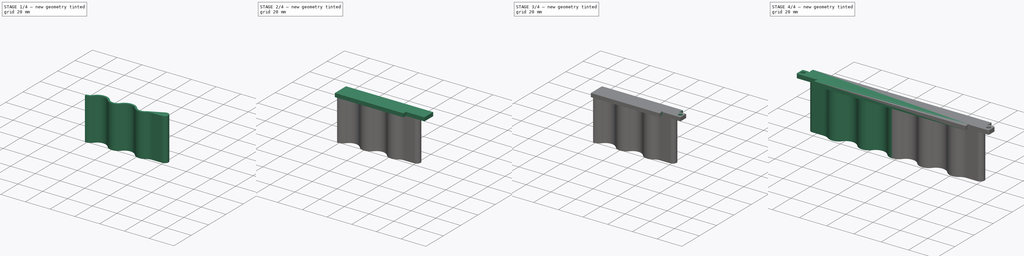
[diagram: build sequence overview — one tinted view per stage of 4, left to right]
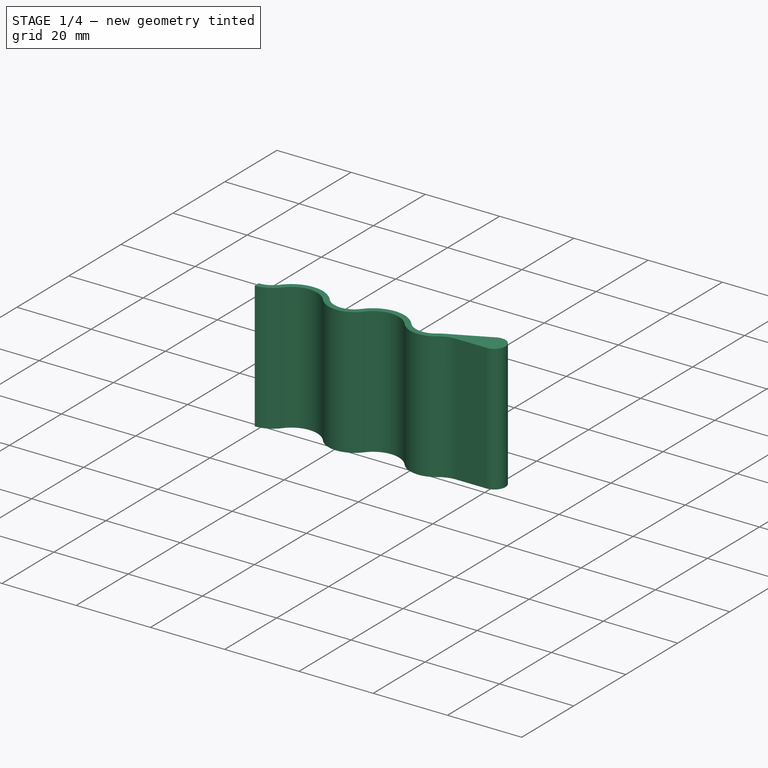
[diagram: stage 1 of 4 — iso view after this stage's code; geometry added in this stage tinted green]
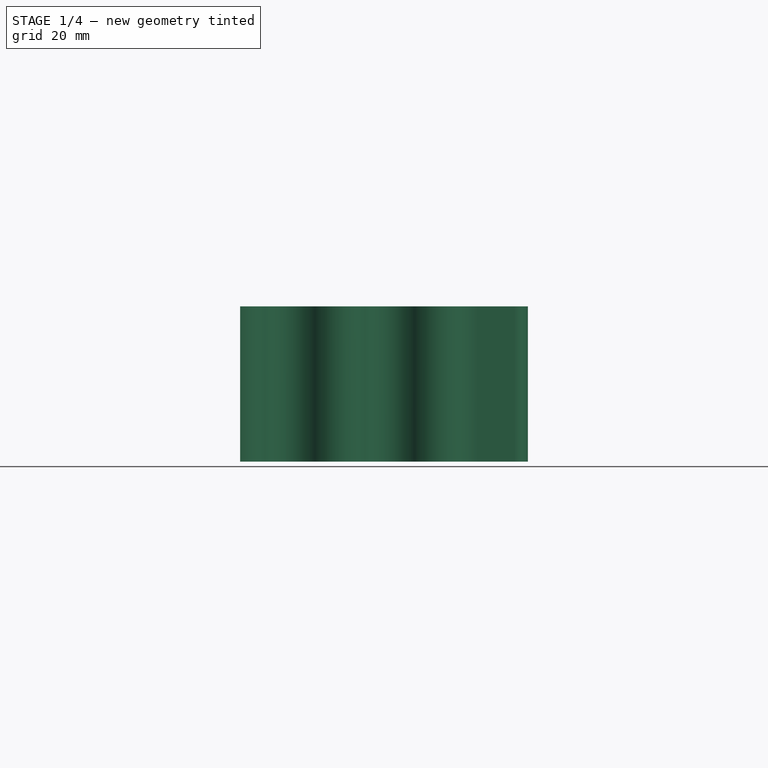
[diagram: stage 1 of 4 — front view after this stage's code; geometry added in this stage tinted green]
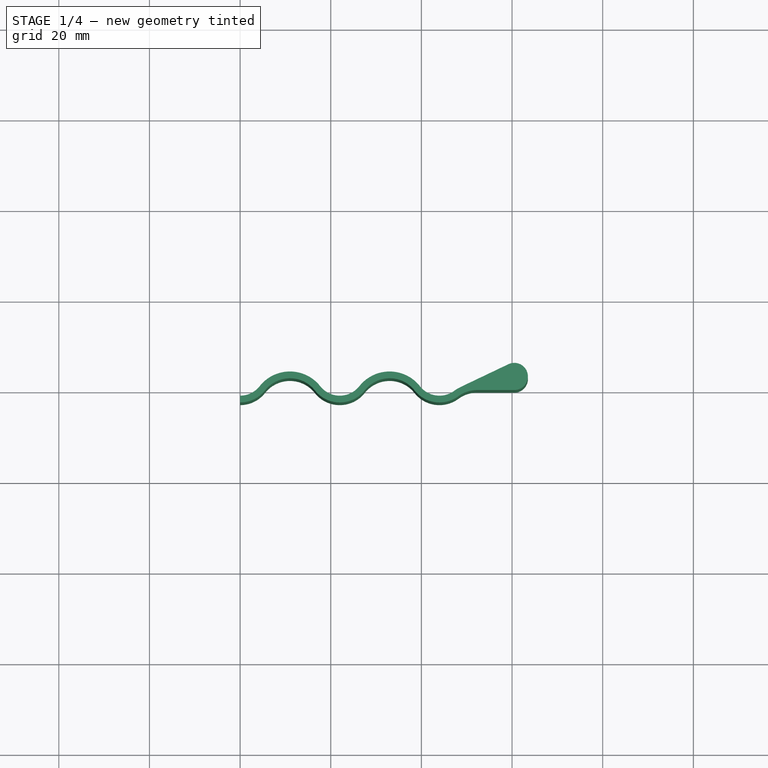
[diagram: stage 1 of 4 — top view after this stage's code; geometry added in this stage tinted green]
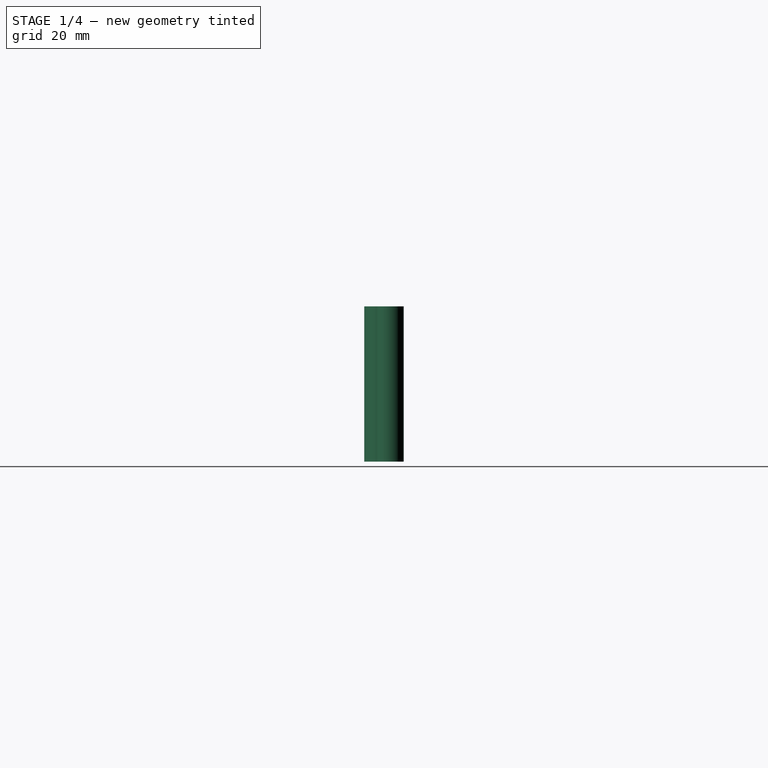
[diagram: stage 1 of 4 — right view after this stage's code; geometry added in this stage tinted green]
FCSTD DOCUMENT  (FreeCAD 1.0R39319 (Git))
Label: Ambient_LED_Screen
License: All rights reserved
LicenseURL: https://en.wikipedia.org/wiki/All_rights_reserved
objects: Sketcher::SketchObject×7, PartDesign::Pocket×5, PartDesign::Pad×2, PartDesign::Chamfer×1, PartDesign::Mirrored×1, PartDesign::Body×1, PartDesign::CoordinateSystem×1, App::Part×1
note: 42 computed .brp shape members not serialized (recipe doc carries the construction recipe); baked Part::Feature solids carry a one-line shape summary decoded from their .brp

FEATURE [Sketcher::SketchObject] Sketch
  ArcFitTolerance = 1e-06
  AttachmentSupport = -> [XY_Plane001]
  FullyConstrained = true
  MakeInternals = false
  MapMode = 5
  sketch-geometry (20):
    g0: LineSegment StartX=52.3059 StartY=0 StartZ=0 EndX=60.5 EndY=0 EndZ=0
    g1: ArcOfCircle CenterX=60.5 CenterY=3 CenterZ=0 NormalX=0 NormalY=0 NormalZ=1 AngleXU=0 Radius=3 StartAngle=4.71239 EndAngle=8.29889
    g2: LineSegment StartX=59.2089 StartY=5.70795 StartZ=0 EndX=48.6478 EndY=0.672534 EndZ=0
    g3: ArcOfCircle CenterX=0 CenterY=4.259 CenterZ=0 NormalX=0 NormalY=0 NormalZ=1 AngleXU=0 Radius=7 StartAngle=4.71239 EndAngle=5.61581
    g4: ArcOfCircle CenterX=0 CenterY=4.259 CenterZ=0 NormalX=0 NormalY=0 NormalZ=1 AngleXU=0 Radius=5.5 StartAngle=4.71239 EndAngle=5.61581
    g5: LineSegment StartX=-1.3e-15 StartY=-2.741 StartZ=0 EndX=-1.3e-15 EndY=-1.241 EndZ=0
    g6: ArcOfCircle CenterX=10.9963 CenterY=-4.40596 CenterZ=0 NormalX=0 NormalY=0 NormalZ=1 AngleXU=0 Radius=7 StartAngle=0.667374 EndAngle=2.47422
    g7: ArcOfCircle CenterX=10.9963 CenterY=-4.40596 CenterZ=0 NormalX=0 NormalY=0 NormalZ=1 AngleXU=0 Radius=8.5 StartAngle=0.667374 EndAngle=2.47422
    g8: ArcOfCircle CenterX=21.9926 CenterY=4.259 CenterZ=0 NormalX=0 NormalY=0 NormalZ=1 AngleXU=0 Radius=5.5 StartAngle=3.80897 EndAngle=5.61581
    g9: ArcOfCircle CenterX=21.9926 CenterY=4.259 CenterZ=0 NormalX=0 NormalY=0 NormalZ=1 AngleXU=0 Radius=7 StartAngle=3.80897 EndAngle=5.61581
    g10: ArcOfCircle CenterX=32.9889 CenterY=-4.40596 CenterZ=0 NormalX=0 NormalY=0 NormalZ=1 AngleXU=0 Radius=8.5 StartAngle=0.667374 EndAngle=2.47422
    g11: ArcOfCircle CenterX=32.9889 CenterY=-4.40596 CenterZ=0 NormalX=0 NormalY=0 NormalZ=1 AngleXU=0 Radius=7 StartAngle=0.667374 EndAngle=2.47422
    g12: ArcOfCircle CenterX=43.9852 CenterY=4.259 CenterZ=0 NormalX=0 NormalY=0 NormalZ=1 AngleXU=0 Radius=7 StartAngle=3.80897 EndAngle=5.34883
    g13: ArcOfCircle CenterX=43.9852 CenterY=4.259 CenterZ=0 NormalX=0 NormalY=0 NormalZ=1 AngleXU=0 Radius=5.5 StartAngle=3.80897 EndAngle=5.34883
    g14: ArcOfCircle CenterX=52.3059 CenterY=-7 CenterZ=0 NormalX=0 NormalY=0 NormalZ=1 AngleXU=0 Radius=8.5 StartAngle=2.0157 EndAngle=2.20724
    g15: ArcOfCircle CenterX=52.3059 CenterY=-7 CenterZ=0 NormalX=0 NormalY=0 NormalZ=1 AngleXU=0 Radius=7 StartAngle=1.5708 EndAngle=2.20724
    g16: GeomPoint [constr] X=66 Y=10 Z=0
    g17: LineSegment [constr] StartX=48.1455 StartY=-1.3705 StartZ=0 EndX=50 EndY=2e-16 EndZ=0
    g18: LineSegment [constr] StartX=10.9963 StartY=-4.40596 StartZ=0 EndX=32.9889 EndY=-4.40596 EndZ=0
    g19: LineSegment [constr] StartX=0 StartY=4.259 StartZ=0 EndX=43.9852 EndY=4.259 EndZ=0
  constraints (49):
    c: PointOnObject(g0,g-1)
    c: PointOnObject(g0,g-1)
    c: Tangent(g0,g1) = -1.5708
    c: Tangent(g1,g2) = -1.5708
    c: Coincident(g5,g3)
    c: Coincident(g5,g4)
    c: Vertical(g5)
    c: Coincident(g4,g3)
    c: PointOnObject(g3,g-2)
    c: Tangent(g6,g3) = 1.5708
    c: Tangent(g7,g4) = 1.5708
    c: Coincident(g6,g7)
    c: Radius(g6) = 7
    c: Distance(g5,g5) = 1.5
    c: Tangent(g8,g7) = 1.5708
    c: Tangent(g9,g6) = 1.5708
    c: Coincident(g9,g8)
    c: PointOnObject(g3,g-2)
    c: Tangent(g10,g8) = 1.5708
    c: Tangent(g11,g9) = 1.5708
    c: Coincident(g11,g10)
    c: Tangent(g12,g11) = 1.5708
    c: Tangent(g13,g10) = 1.5708
    c: Coincident(g12,g13)
    c: Tangent(g14,g13) = 1.5708
    c: Tangent(g14,g2) = -1.5708
    c: Tangent(g15,g0) = 1.5708
    c: Radius(g9) = 7
    c: Radius(g12) = 7
    c: Coincident(g15,g14)
    c: DistanceX(g-1,g16) = 66
    c: Distance(g16,g-1) = 10
    c: Radius(g1) = 3
    c: Distance(g1,g-2) = 60.5
    c: Tangent(g15,g12) = 1.5708
    c: Tangent(g12,g17) = -1.5708
    c: Radius(g3) = 7
    c: Radius(g11) = 7
    c: Radius(g15) = 7
    c: PointOnObject(g17,g-1)
    c: DistanceX(g-1,g17) = 50
    c: Coincident(g18,g6)
    c: Coincident(g18,g10)
    c: Coincident(g19,g3)
    c: Coincident(g19,g12)
    c: Horizontal(g19)
    c: PointOnObject(g8,g19)
    c: Horizontal(g18)
    c: Distance(g-1,g19) = 4.259
FEATURE [PartDesign::Pad] Pad
  Direction = (0,0,1)
  Length = 34.25
  Length2 = 10
  Profile = -> Sketch
  ReferenceAxis = -> Sketch [N_Axis]
  Refine = true
  Suppressed = false
  Type = 0
FEATURE [Sketcher::SketchObject] Sketch001
  ArcFitTolerance = 1e-06
  AttachmentSupport = -> [Pad]
  ExternalGeometry = -> [Pad]
  FullyConstrained = true
  MakeInternals = false
  MapMode = 5
  Placement = pos=(0,0,0) rot=(1,0,0;3.14159rad)
  sketch-geometry (1):
    g0: Circle CenterX=60.5 CenterY=-3 CenterZ=0 NormalX=0 NormalY=0 NormalZ=1 AngleXU=0 Radius=1.25
  constraints (2):
    c: Coincident(g0,g-3)
    c: Diameter(g0) = 2.5
FEATURE [PartDesign::Pocket] Pocket
  BaseFeature = -> Pad
  Direction = (0,0,1)
  Length = 10
  Length2 = 5
  Profile = -> Sketch001
  ReferenceAxis = -> Sketch001 [N_Axis]
  Refine = true
  Suppressed = false
  Type = 0
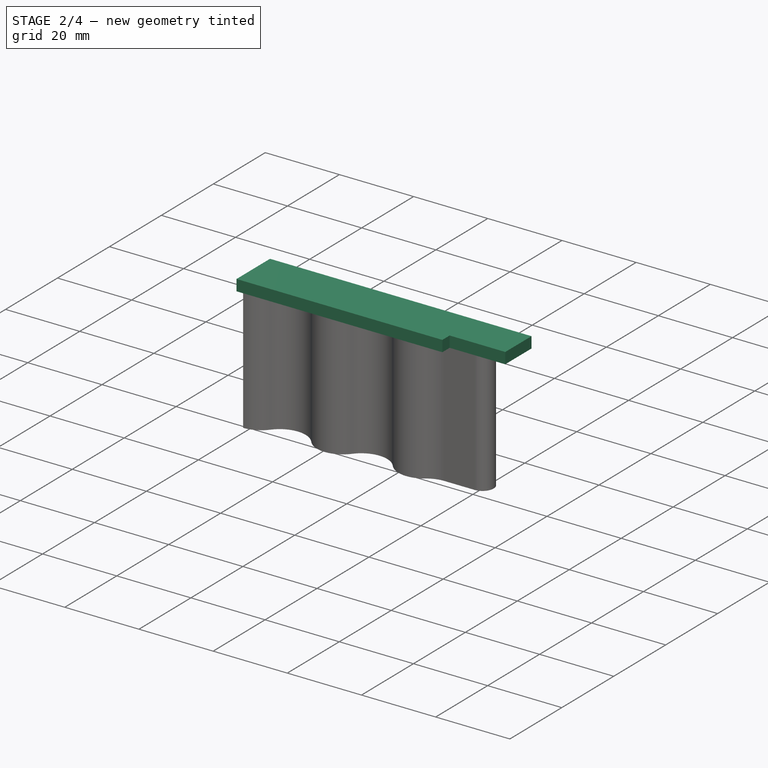
[diagram: stage 2 of 4 — iso view after this stage's code; geometry added in this stage tinted green]
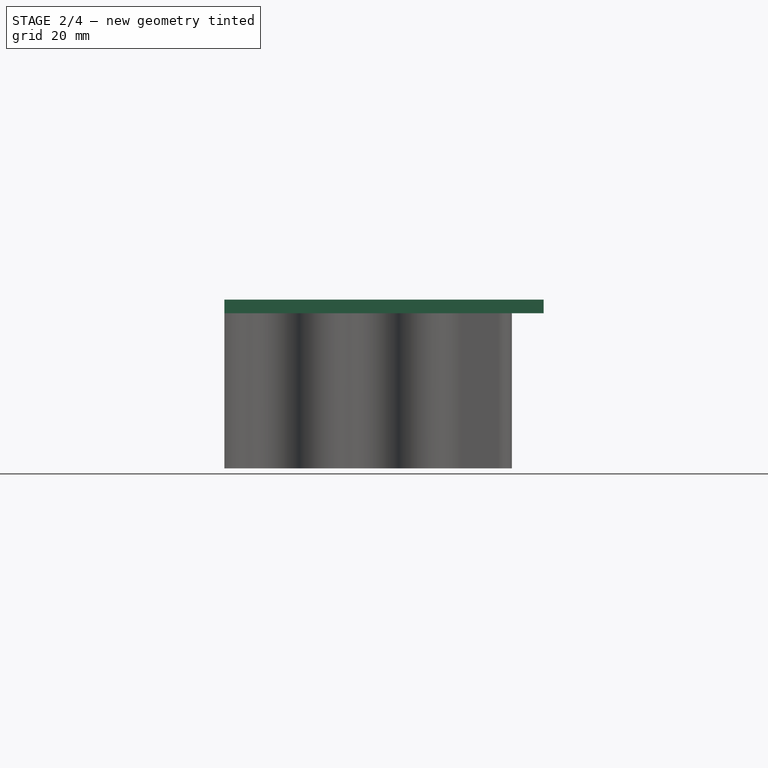
[diagram: stage 2 of 4 — front view after this stage's code; geometry added in this stage tinted green]
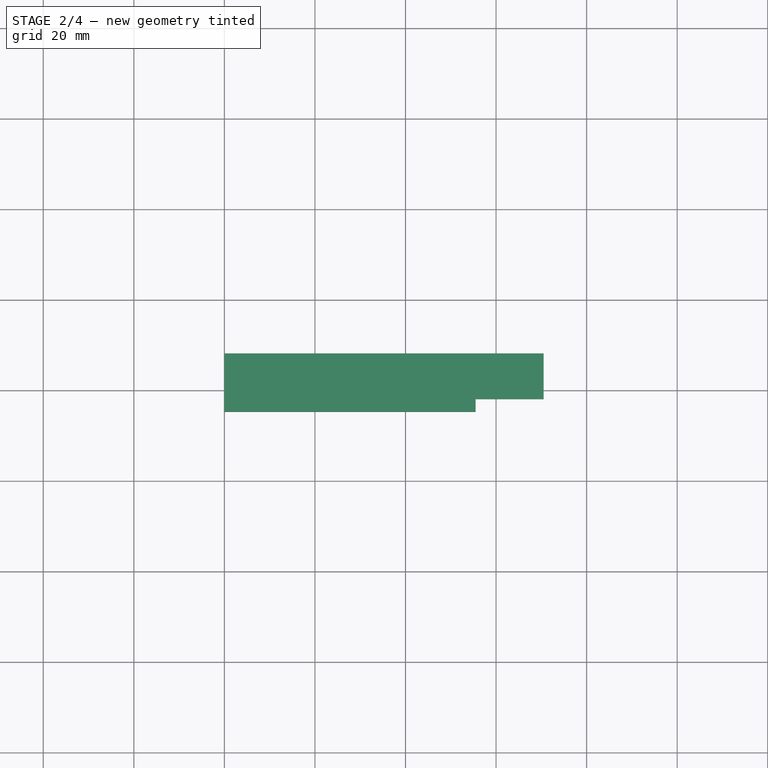
[diagram: stage 2 of 4 — top view after this stage's code; geometry added in this stage tinted green]
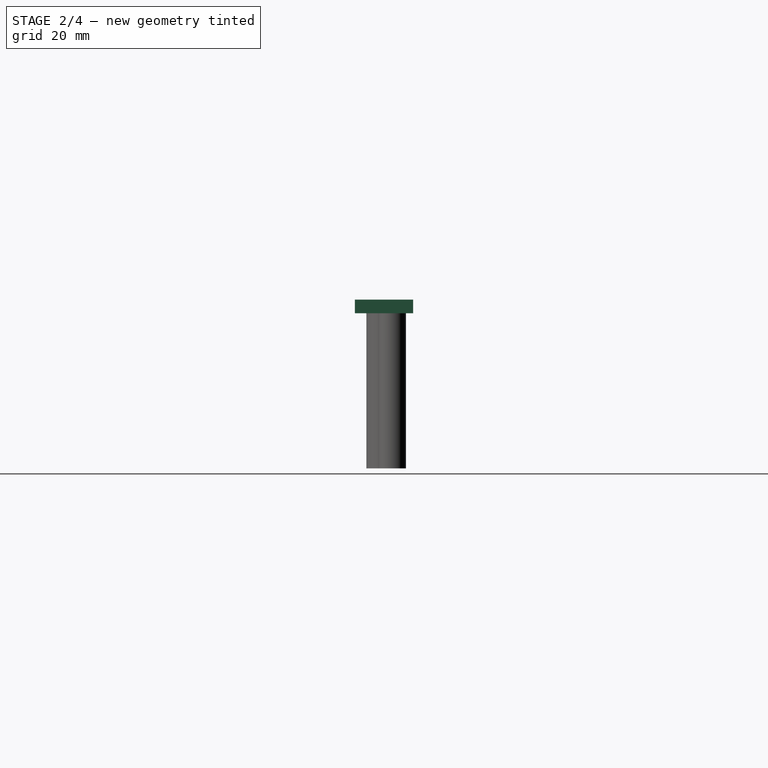
[diagram: stage 2 of 4 — right view after this stage's code; geometry added in this stage tinted green]
FEATURE [Sketcher::SketchObject] Sketch002
  ArcFitTolerance = 1e-06
  AttachmentSupport = -> [Pocket]
  FullyConstrained = true
  MakeInternals = false
  MapMode = 5
  Placement = pos=(0,0,34.25) rot=(0,0,1;0rad)
  sketch-geometry (4):
    g0: LineSegment StartX=0 StartY=7.59 StartZ=0 EndX=0 EndY=-5.3 EndZ=0
    g1: LineSegment StartX=0 StartY=-5.3 StartZ=0 EndX=70.5 EndY=-5.3 EndZ=0
    g2: LineSegment StartX=70.5 StartY=-5.3 StartZ=0 EndX=70.5 EndY=7.59 EndZ=0
    g3: LineSegment StartX=70.5 StartY=7.59 StartZ=0 EndX=0 EndY=7.59 EndZ=0
  constraints (12):
    c: Coincident(g0,g1)
    c: Coincident(g1,g2)
    c: Coincident(g2,g3)
    c: Coincident(g3,g0)
    c: Vertical(g0)
    c: Vertical(g2)
    c: Horizontal(g1)
    c: Horizontal(g3)
    c: PointOnObject(g0,g-2)
    c: Distance(g2,g0) = 70.5
    c: Distance(g3,g1) = 12.89
    c: Distance(g1,g-1) = 5.3
FEATURE [PartDesign::Pad] Pad001
  BaseFeature = -> Pocket
  Direction = (0,0,1)
  Length = 3
  Length2 = 10
  Profile = -> Sketch002
  ReferenceAxis = -> Sketch002 [N_Axis]
  Refine = true
  Suppressed = false
  Type = 0
FEATURE [Sketcher::SketchObject] Sketch003
  ArcFitTolerance = 1e-06
  AttachmentSupport = -> [Pad001]
  ExternalGeometry = -> [Pad001]
  FullyConstrained = true
  MakeInternals = false
  MapMode = 5
  Placement = pos=(0,0,37.25) rot=(0,0,1;0rad)
  sketch-geometry (4):
    g0: LineSegment StartX=70.5 StartY=-2.5 StartZ=0 EndX=55.5 EndY=-2.5 EndZ=0
    g1: LineSegment StartX=55.5 StartY=-2.5 StartZ=0 EndX=55.5 EndY=-5.3 EndZ=0
    g2: LineSegment StartX=55.5 StartY=-5.3 StartZ=0 EndX=70.5 EndY=-5.3 EndZ=0
    g3: LineSegment StartX=70.5 StartY=-5.3 StartZ=0 EndX=70.5 EndY=-2.5 EndZ=0
  constraints (12):
    c: Coincident(g0,g1)
    c: Coincident(g1,g2)
    c: Coincident(g2,g3)
    c: Coincident(g3,g0)
    c: Horizontal(g0)
    c: Horizontal(g2)
    c: Vertical(g1)
    c: Vertical(g3)
    c: PointOnObject(g0,g-3)
    c: PointOnObject(g1,g-4)
    c: Distance(g3,g1) = 15
    c: Distance(g2,g0) = 2.8
FEATURE [PartDesign::Pocket] Pocket001
  BaseFeature = -> Pad001
  Direction = (0,0,-1)
  Length = 5
  Length2 = 5
  Profile = -> Sketch003
  ReferenceAxis = -> Sketch003 [N_Axis]
  Refine = true
  Suppressed = false
  Type = 1
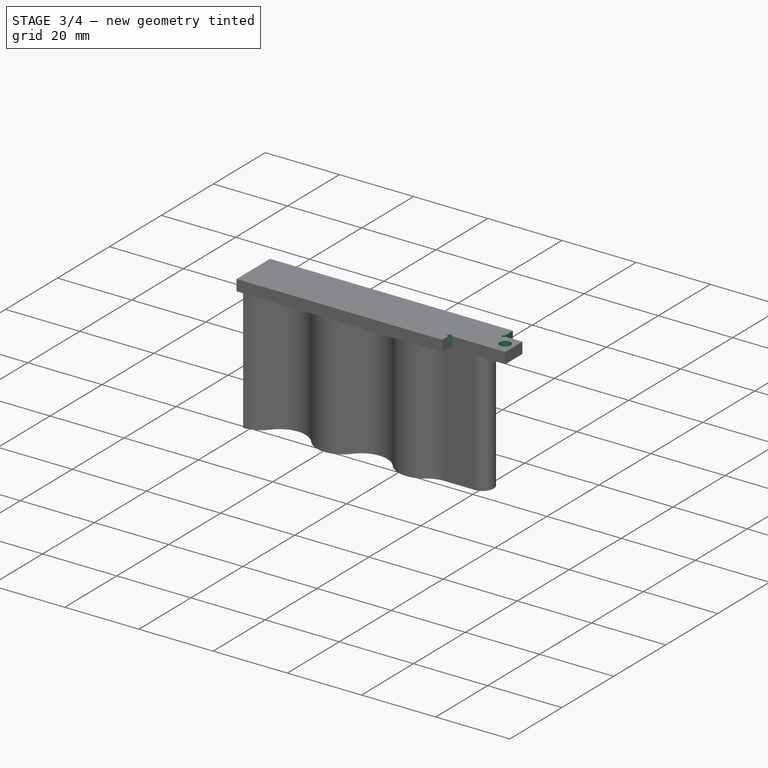
[diagram: stage 3 of 4 — iso view after this stage's code; geometry added in this stage tinted green]
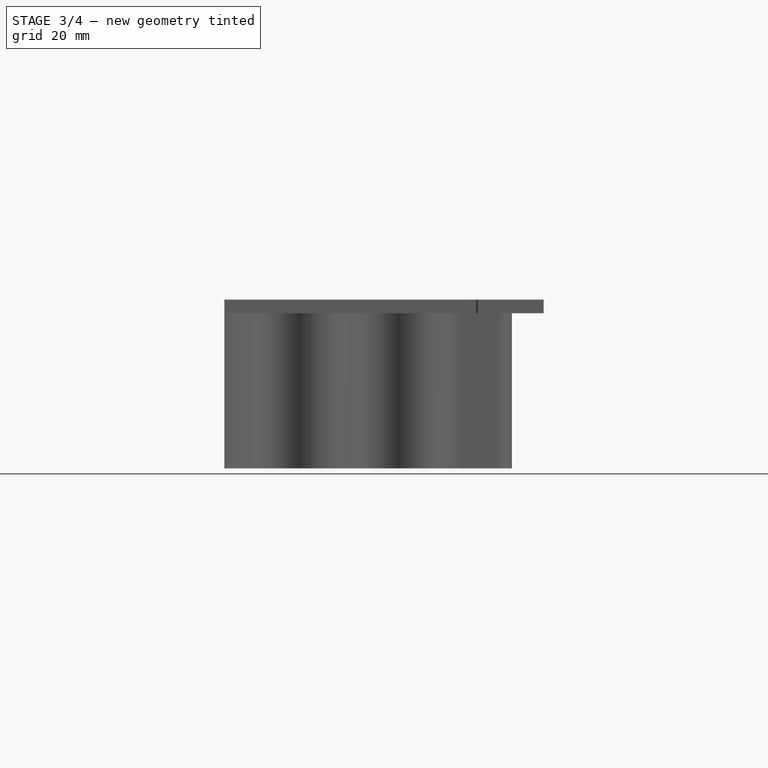
[diagram: stage 3 of 4 — front view after this stage's code; geometry added in this stage tinted green]
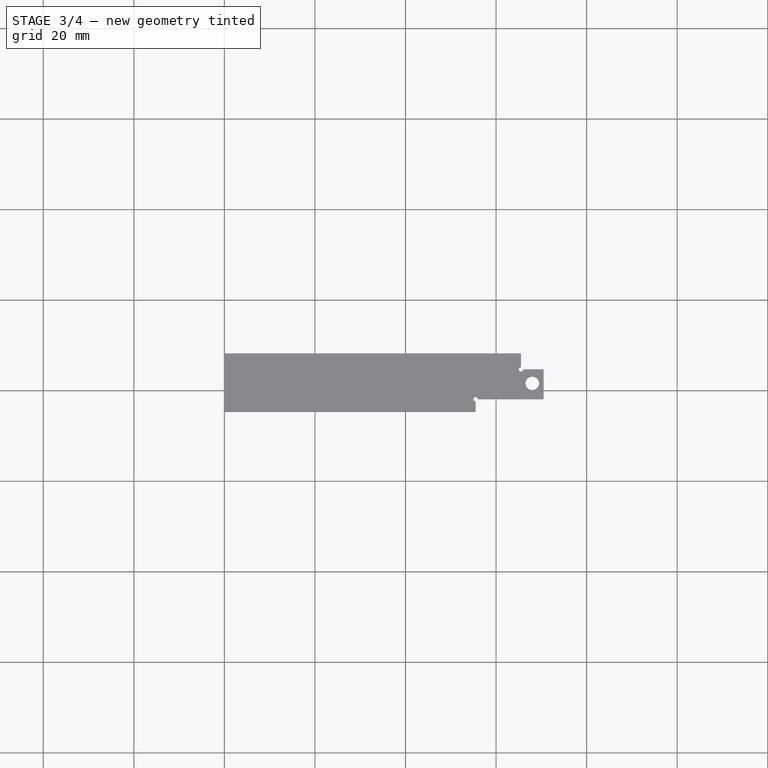
[diagram: stage 3 of 4 — top view after this stage's code; geometry added in this stage tinted green]
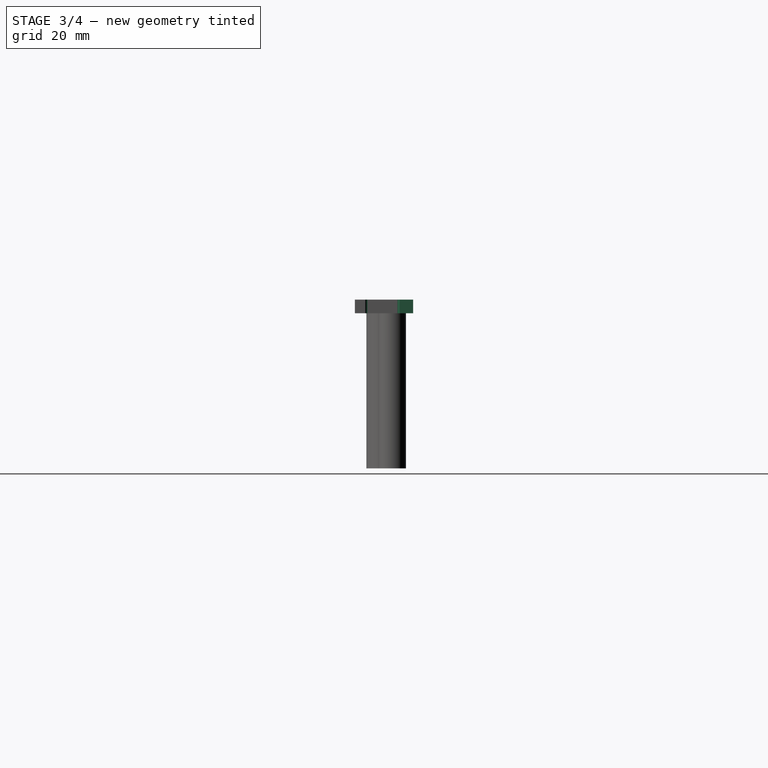
[diagram: stage 3 of 4 — right view after this stage's code; geometry added in this stage tinted green]
FEATURE [Sketcher::SketchObject] Sketch004
  ArcFitTolerance = 1e-06
  AttachmentSupport = -> [Pocket001]
  ExternalGeometry = -> [Pocket001]
  FullyConstrained = true
  MakeInternals = false
  MapMode = 5
  Placement = pos=(0,0,37.25) rot=(0,0,1;0rad)
  sketch-geometry (4):
    g0: LineSegment StartX=65.5 StartY=7.59 StartZ=0 EndX=65.5 EndY=4.09 EndZ=0
    g1: LineSegment StartX=65.5 StartY=4.09 StartZ=0 EndX=70.5 EndY=4.09 EndZ=0
    g2: LineSegment StartX=70.5 StartY=4.09 StartZ=0 EndX=70.5 EndY=7.59 EndZ=0
    g3: LineSegment StartX=70.5 StartY=7.59 StartZ=0 EndX=65.5 EndY=7.59 EndZ=0
  constraints (12):
    c: Coincident(g0,g1)
    c: Coincident(g1,g2)
    c: Coincident(g2,g3)
    c: Coincident(g3,g0)
    c: Vertical(g0)
    c: Vertical(g2)
    c: Horizontal(g1)
    c: Horizontal(g3)
    c: PointOnObject(g0,g-4)
    c: Distance(g2,g0) = 5
    c: Distance(g1,g3) = 3.5
    c: PointOnObject(g1,g-3)
FEATURE [PartDesign::Pocket] Pocket002
  BaseFeature = -> Pocket001
  Direction = (0,0,-1)
  Length = 5
  Length2 = 5
  Profile = -> Sketch004
  ReferenceAxis = -> Sketch004 [N_Axis]
  Refine = true
  Suppressed = false
  Type = 1
FEATURE [Sketcher::SketchObject] Sketch005
  ArcFitTolerance = 1e-06
  AttachmentSupport = -> [Pocket002]
  ExternalGeometry = -> [Pocket002]
  FullyConstrained = true
  MakeInternals = false
  MapMode = 5
  Placement = pos=(0,0,37.25) rot=(0,0,1;0rad)
  sketch-geometry (1):
    g0: Circle CenterX=68 CenterY=1 CenterZ=0 NormalX=0 NormalY=0 NormalZ=1 AngleXU=0 Radius=1.5
  constraints (3):
    c: Distance(g0,g-2) = 68
    c: Distance(g0,g-3) = 3.5
    c: Diameter(g0) = 3
FEATURE [PartDesign::Pocket] Pocket003
  BaseFeature = -> Pocket002
  Direction = (0,0,-1)
  Length = 5
  Length2 = 5
  Profile = -> Sketch005
  ReferenceAxis = -> Sketch005 [N_Axis]
  Refine = true
  Suppressed = false
  Type = 1
FEATURE [Sketcher::SketchObject] Sketch006
  ArcFitTolerance = 1e-06
  AttachmentSupport = -> [Pocket003]
  ExternalGeometry = -> [Pocket003]
  FullyConstrained = true
  MakeInternals = false
  MapMode = 5
  Placement = pos=(0,0,37.25) rot=(0,0,1;0rad)
  sketch-geometry (2):
    g0: Circle CenterX=65.5 CenterY=4.09 CenterZ=0 NormalX=0 NormalY=0 NormalZ=1 AngleXU=0 Radius=0.5
    g1: Circle CenterX=55.5 CenterY=-2.5 CenterZ=0 NormalX=0 NormalY=0 NormalZ=1 AngleXU=0 Radius=0.5
  constraints (4):
    c: Coincident(g0,g-3)
    c: Coincident(g1,g-4)
    c: Diameter(g0) = 1
    c: Diameter(g1) = 1
FEATURE [PartDesign::Pocket] Pocket004
  BaseFeature = -> Pocket003
  Direction = (0,0,-1)
  Length = 5
  Length2 = 5
  Profile = -> Sketch006
  ReferenceAxis = -> Sketch006 [N_Axis]
  Refine = true
  Suppressed = false
  Type = 1
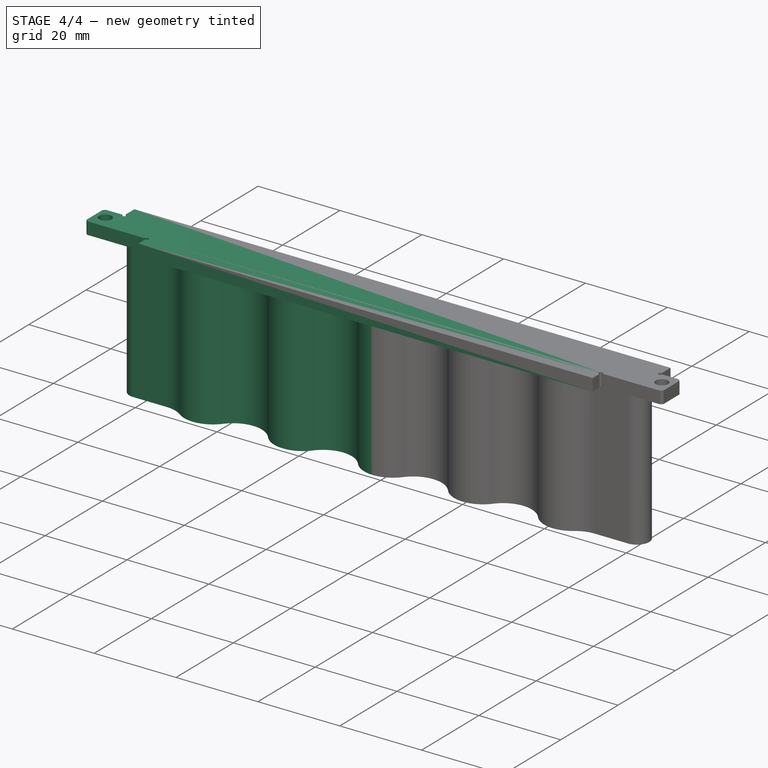
[diagram: stage 4 of 4 — iso view after this stage's code; geometry added in this stage tinted green]
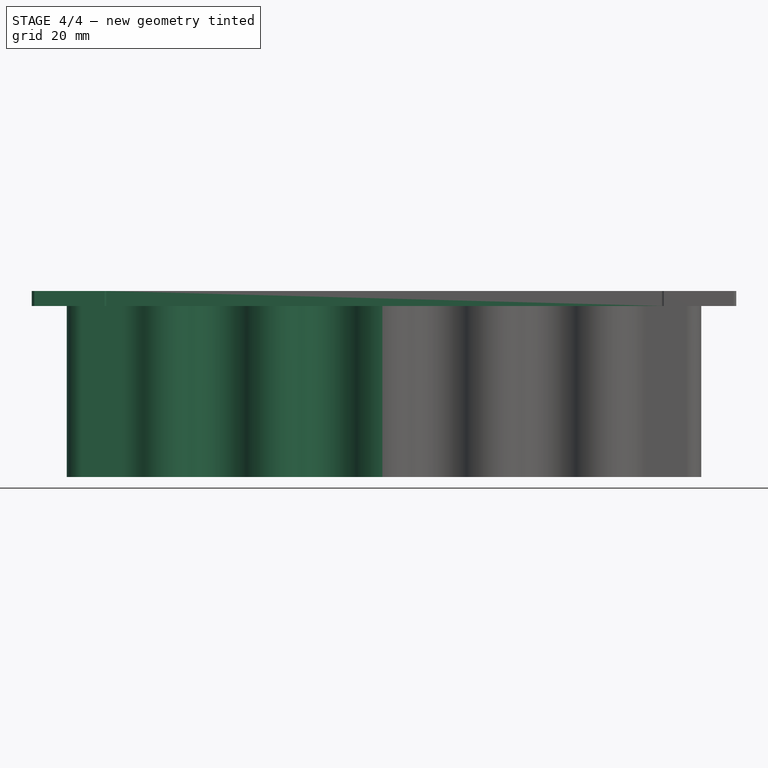
[diagram: stage 4 of 4 — front view after this stage's code; geometry added in this stage tinted green]
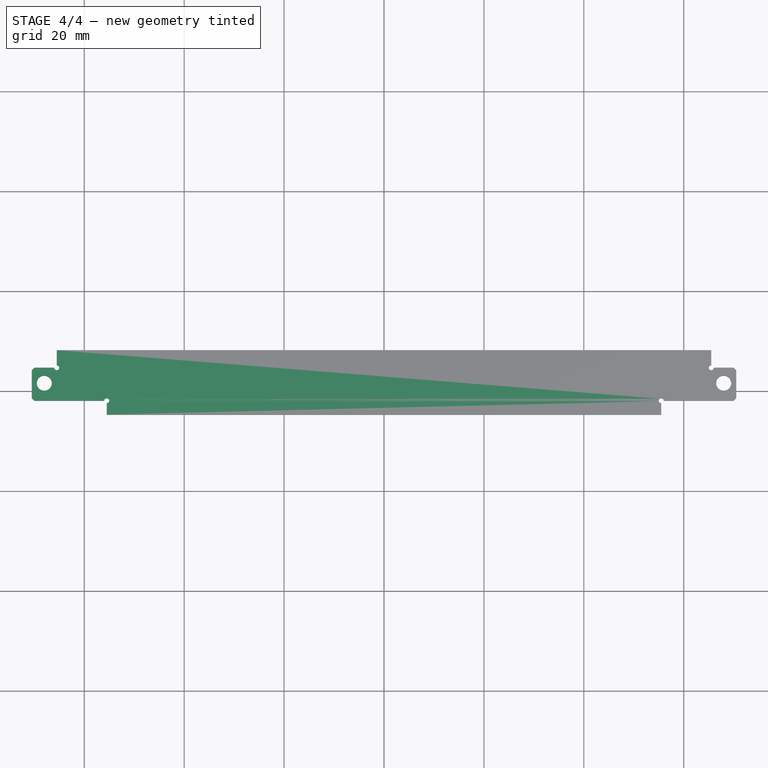
[diagram: stage 4 of 4 — top view after this stage's code; geometry added in this stage tinted green]
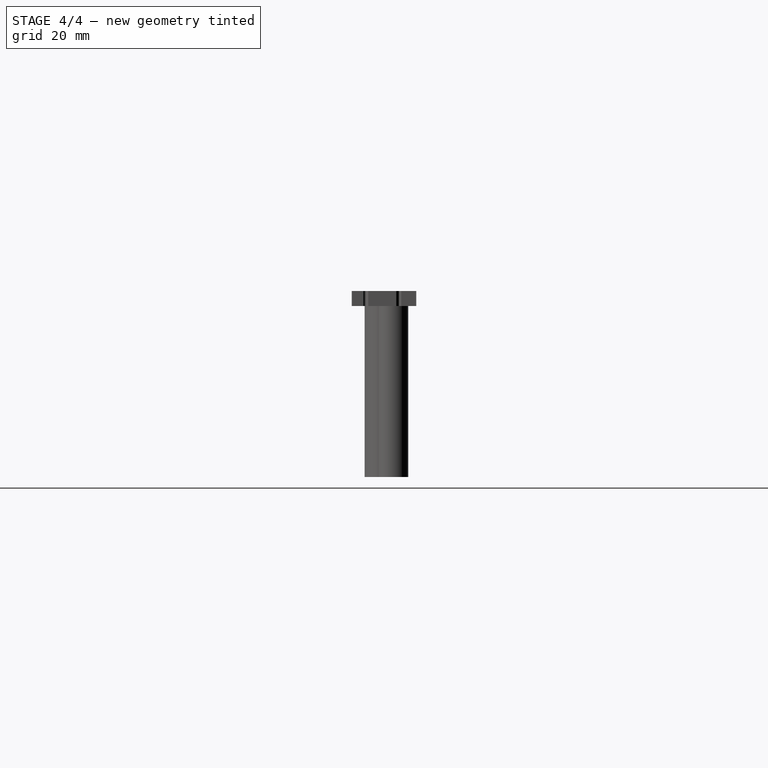
[diagram: stage 4 of 4 — right view after this stage's code; geometry added in this stage tinted green]
FEATURE [PartDesign::Chamfer] Chamfer
  Angle = 45
  Base = -> Pocket004 [Edge81,Edge68]
  BaseFeature = -> Pocket004
  ChamferType = 0
  FlipDirection = false
  Refine = true
  Size = 0.5
  Size2 = 1
  SupportTransform = false
  Suppressed = false
  UseAllEdges = false
FEATURE [PartDesign::Mirrored] Mirrored
  BaseFeature = -> Chamfer
  MirrorPlane = -> YZ_Plane001
  Refine = true
  Suppressed = false
  TransformMode = 1
FEATURE [PartDesign::Body] Body  label="Ambient_LED_Screen001"
  AllowCompound = false
  Group = -> [Sketch,Pad,Sketch001,Pocket,Sketch002,Pad001,Sketch003,Pocket001,Sketch004,Pocket002,Sketch005,Pocket003,Sketch006,Pocket004,Chamfer,Mirrored]
  Origin = -> Origin001
  Tip = -> Mirrored
FEATURE [PartDesign::CoordinateSystem] stack_att
  AttacherType = Attacher::AttachEngine3D
  AttachmentSupport = -> [Mirrored]
  MapMode = 11
  Placement = pos=(60.5,3,0) rot=(0.707107,-0.707107,0;3.14159rad)
FEATURE [App::Part] Part  label="Ambient_LED_Screen"
  Group = -> [Body,stack_att]
  Origin = -> Origin
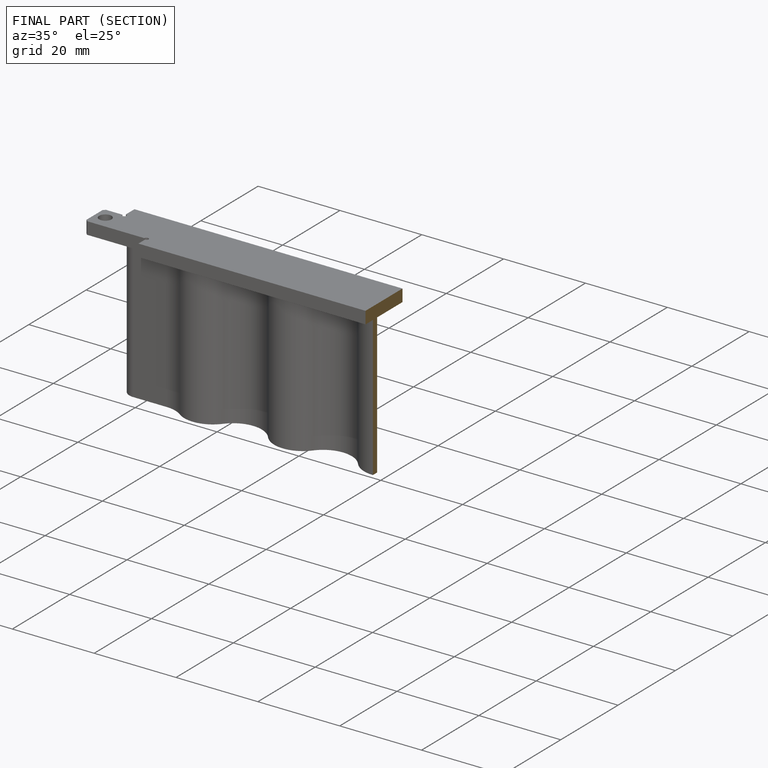
[diagram: finished part — half-section view (interior)]
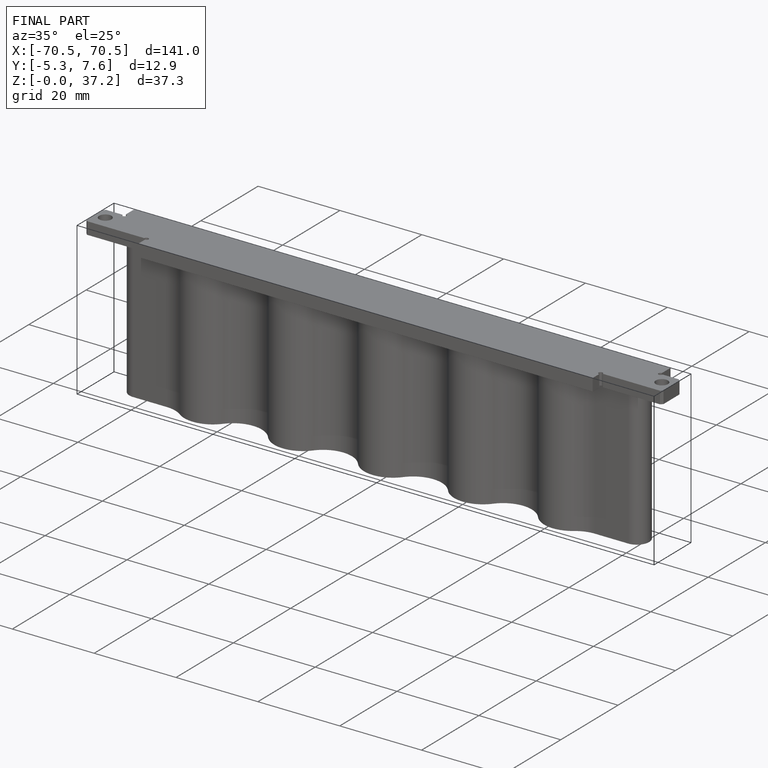
[diagram: finished part — iso view with bounding-box wireframe]
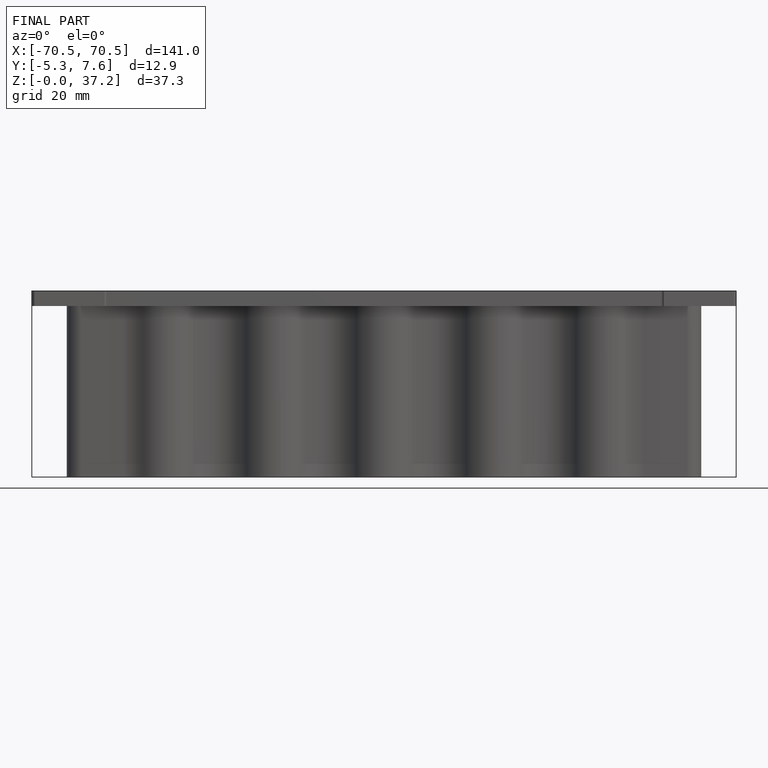
[diagram: finished part — front view with bounding-box wireframe]
